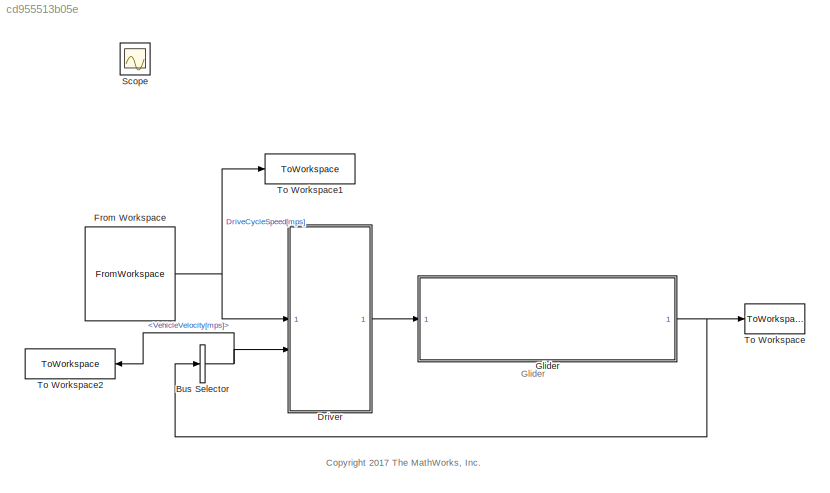
MODEL slx_cd955513b05e
KIND model
CONFIG AbsTol = auto
CONFIG EnableMultiTasking = on
CONFIG FixedStep = 1e-4
CONFIG MaxStep = 0.1
CONFIG MinStep = auto
CONFIG PostLoadFcn = GliderDir = pwd;\n\ncd ..\;\nSimulinkDir = pwd;\naddpath(SimulinkDir);\n\ncd(GliderDir);\n\n
CONFIG RelTol = 1e-3
CONFIG SampleTimeConstraint = Unconstrained
CONFIG SolverName = ode45
CONFIG StartTime = 0.0
CONFIG StopTime = StopTime
WORKSPACE source: mxarray member
WORKSPACE DrCycles: object (value not decoded)
WORKSPACE DriverPic = [255 255 255 255 255 255 255 255 255 255 255 255 ... (1049040 elements, 940x372x3)]
WORKSPACE TimeHWFET = 765
WORKSPACE TimeUDDS = 1372
WORKSPACE TimeUS06 = 596
WORKSPACE VehiclePic = [252 252 252 252 252 252 252 252 252 252 252 252 ... (1047540 elements, 316x1105x3)]
WORKSPACE aeroDragCoeff = 0.38
WORKSPACE airDensity = 1.23
WORKSPACE frontArea = 2.1
WORKSPACE gravity = 9.81
WORKSPACE inclinationAngle = 0
WORKSPACE inertialMassVeh = 2392
WORKSPACE massVeh = 2300
WORKSPACE rollingResistCoeff = 0.01
BLOCK [BusSelector] Bus Selector
  OutputSignals = VehicleVelocity[mps]
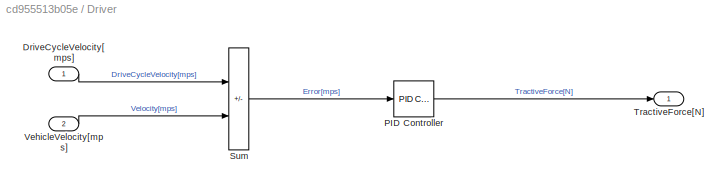
BLOCK [SubSystem] Driver
BLOCK [Inport] Driver/DriveCycleVelocity[mps]
BLOCK [Reference] Driver/PID Controller  REF=slpidlib/PID Controller
  SourceBlock = slpidlib/PID Controller
  SourceType = PID 1dof
BLOCK [Sum] Driver/Sum
  IconShape = rectangular
  Inputs = +-
BLOCK [Outport] Driver/TractiveForce[N]
  VectorParamsAs1DForOutWhenUnconnected = off
BLOCK [Inport] Driver/VehicleVelocity[mps]
  Port = 2
BLOCK [FromWorkspace] From Workspace
  SampleTime = time_step
  VariableName = timeSpeedData
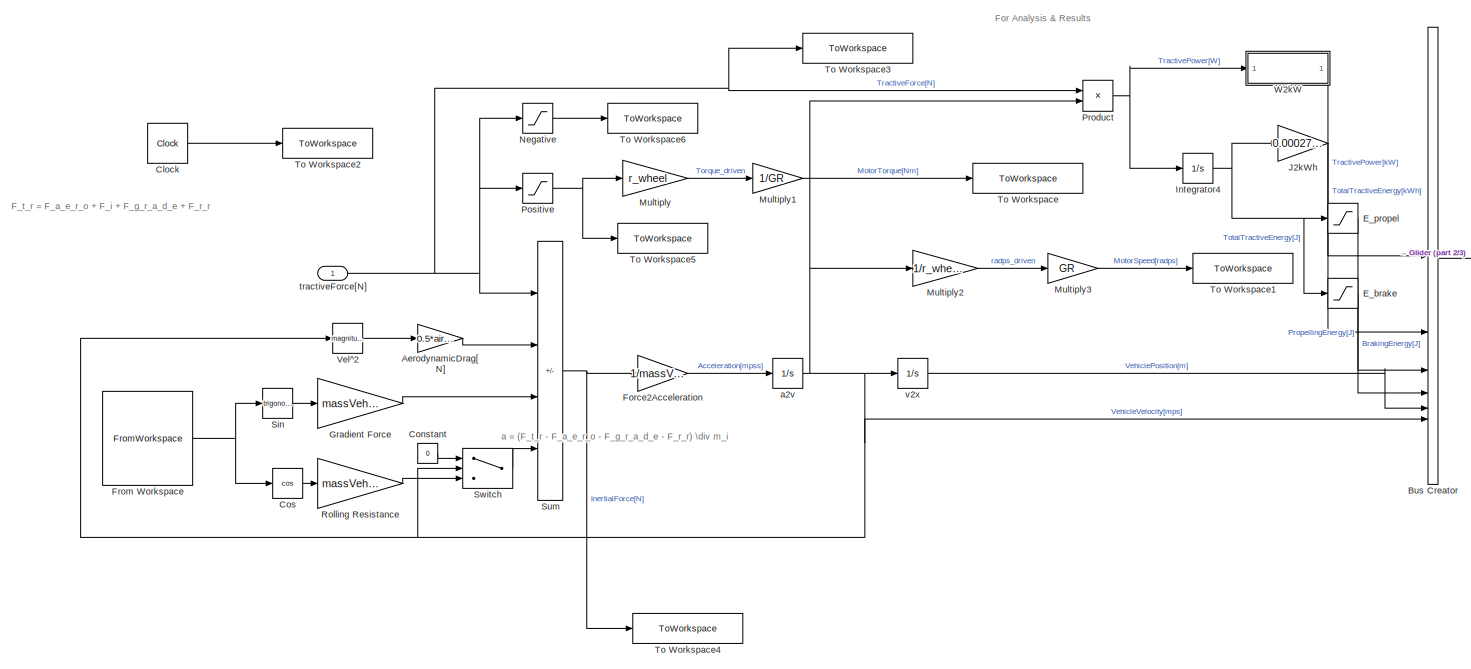
[diagram: Glider - part 1/3, most of the canvas]
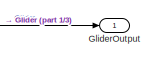
[diagram: Glider - part 2/3, middle right region]
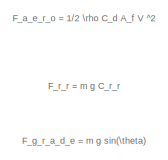
[diagram: Glider - part 3/3, middle left region]
BLOCK [SubSystem] Glider
  AncestorBlock = Driver_Glider_Library/Glider
BLOCK [Gain] Glider/AerodynamicDrag[N]
  AttributesFormatString = %<Gain>
  Gain = 0.5*airDensity*aeroDragCoeff*frontArea
BLOCK [BusCreator] Glider/Bus Creator
  DisplayOption = bar
  InheritFromInputs = on
  Inputs = 6
BLOCK [Clock] Glider/Clock
BLOCK [Constant] Glider/Constant
  Value = 0
BLOCK [Trigonometry] Glider/Cos
  Operator = cos
BLOCK [Saturate] Glider/E_brake
  LowerLimit = -inf
  UpperLimit = 0
BLOCK [Saturate] Glider/E_propel
  LowerLimit = 0
  UpperLimit = inf
BLOCK [Gain] Glider/Force2Acceleration
  AttributesFormatString = %<Gain>
  Gain = 1/massVeh
BLOCK [FromWorkspace] Glider/From Workspace
  SampleTime = time_step
  VariableName = timeThetaData
BLOCK [Outport] Glider/GliderOutput
  VectorParamsAs1DForOutWhenUnconnected = off
BLOCK [Gain] Glider/Gradient Force
  Gain = massVeh*gravity
BLOCK [Integrator] Glider/Integrator4
BLOCK [Gain] Glider/J2kWh
  Gain = 0.000278/1000
BLOCK [Gain] Glider/Multiply
  Gain = r_wheel
BLOCK [Gain] Glider/Multiply1
  Gain = 1/GR
BLOCK [Gain] Glider/Multiply2
  Gain = 1/r_wheel
BLOCK [Gain] Glider/Multiply3
  Gain = GR
BLOCK [Saturate] Glider/Negative
  LowerLimit = -inf
  UpperLimit = 0
BLOCK [Saturate] Glider/Positive
  LowerLimit = 0
  UpperLimit = inf
BLOCK [Product] Glider/Product
BLOCK [Gain] Glider/Rolling Resistance
  Gain = massVeh*gravity*rollingResistCoeff
BLOCK [Trigonometry] Glider/Sin
BLOCK [Sum] Glider/Sum
  IconShape = rectangular
  Inputs = +---
BLOCK [Switch] Glider/Switch
  Criteria = u2 ~= 0
  InputSameDT = off
  SaturateOnIntegerOverflow = off
BLOCK [ToWorkspace] Glider/To Workspace
  FixptAsFi = on
  MaxDataPoints = inf
  SampleTime = -1
  VariableName = motorTorqueOut
BLOCK [ToWorkspace] Glider/To Workspace1
  FixptAsFi = on
  MaxDataPoints = inf
  SampleTime = -1
  VariableName = motorSpeedOut
BLOCK [ToWorkspace] Glider/To Workspace2
  FixptAsFi = on
  MaxDataPoints = inf
  SampleTime = -1
  VariableName = simTime
BLOCK [ToWorkspace] Glider/To Workspace3
  FixptAsFi = on
  MaxDataPoints = inf
  SampleTime = -1
  VariableName = tractiveForceOut
BLOCK [ToWorkspace] Glider/To Workspace4
  FixptAsFi = on
  MaxDataPoints = inf
  SampleTime = -1
  VariableName = inertialForceOut
BLOCK [ToWorkspace] Glider/To Workspace5
  FixptAsFi = on
  MaxDataPoints = inf
  SampleTime = -1
  VariableName = positiveTractiveForceOut
BLOCK [ToWorkspace] Glider/To Workspace6
  FixptAsFi = on
  MaxDataPoints = inf
  SampleTime = -1
  VariableName = frictionBrakingForceOut
BLOCK [Math] Glider/Vel^2
  Operator = magnitude^2
  SignedPower = on
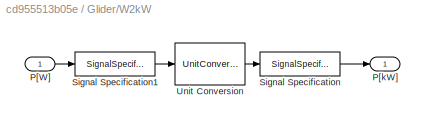
BLOCK [SubSystem] Glider/W2kW
BLOCK [Inport] Glider/W2kW/P[W]
BLOCK [Outport] Glider/W2kW/P[kW]
  VectorParamsAs1DForOutWhenUnconnected = off
BLOCK [SignalSpecification] Glider/W2kW/Signal Specification
  Unit = kW
BLOCK [SignalSpecification] Glider/W2kW/Signal Specification1
  Unit = W
BLOCK [UnitConversion] Glider/W2kW/Unit Conversion
BLOCK [Integrator] Glider/a2v
BLOCK [Inport] Glider/tractiveForce[N]
BLOCK [Integrator] Glider/v2x
BLOCK [Scope] Scope
  Floating = off
  IOType = viewer
  NumInputPorts = 1
  ScopeSpecificationString = Simulink.scopes.TimeScopeBlockCfg('CurrentConfiguration', extmgr.ConfigurationSet(extmgr.Configuration('Core','General UI',true),extmgr.Configuration('Core','Source UI',true),extmgr.Configuration('Sources','WiredSimulink',true),extmgr.Configuration('Visuals','Time Domain',true,'SerializedDisplays',{struct('MinYLimReal','-10.07134','MaxYLimReal','90.34126','YLabelReal','','MinYLimMag','0.00000','Ma...<+1421ch>
BLOCK [ToWorkspace] To Workspace
  FixptAsFi = on
  MaxDataPoints = inf
  SampleTime = -1
  VariableName = results
BLOCK [ToWorkspace] To Workspace1
  FixptAsFi = on
  MaxDataPoints = inf
  SampleTime = -1
  VariableName = referenceVelocityOut
BLOCK [ToWorkspace] To Workspace2
  FixptAsFi = on
  MaxDataPoints = inf
  NameLocation = top
  SampleTime = -1
  VariableName = actualVelocityOut
ANNOTATION (root): <copyright redacted>
ANNOTATION (root): Glider
ANNOTATION Glider: F_a_e_r_o = 1/2 \rho C_d A_f V ^2
ANNOTATION Glider: F_g_r_a_d_e = m g sin(\theta)
ANNOTATION Glider: F_r_r = m g C_r_r
ANNOTATION Glider: F_t_r = F_a_e_r_o + F_i + F_g_r_a_d_e + F_r_r
ANNOTATION Glider: For Analysis & Results
ANNOTATION Glider: a = (F_t_r - F_a_e_r_o - F_g_r_a_d_e - F_r_r) \div m_i
NET Bus Selector:1 -> Driver:2, To Workspace2:1
LINE Driver/DriveCycleVelocity[mps]:1 -> Driver/Sum:1
LINE Driver/PID Controller:1 -> Driver/TractiveForce[N]:1
LINE Driver/Sum:1 -> Driver/PID Controller:1
LINE Driver/VehicleVelocity[mps]:1 -> Driver/Sum:2
LINE Driver:1 -> Glider:1
NET From Workspace:1 -> Driver:1, To Workspace1:1
NET Glider:1 -> Bus Selector:1, To Workspace:1
note: NET lines group one-source signal fan-out (src -> all destinations, sorted); 1:1 wires keep LINE
